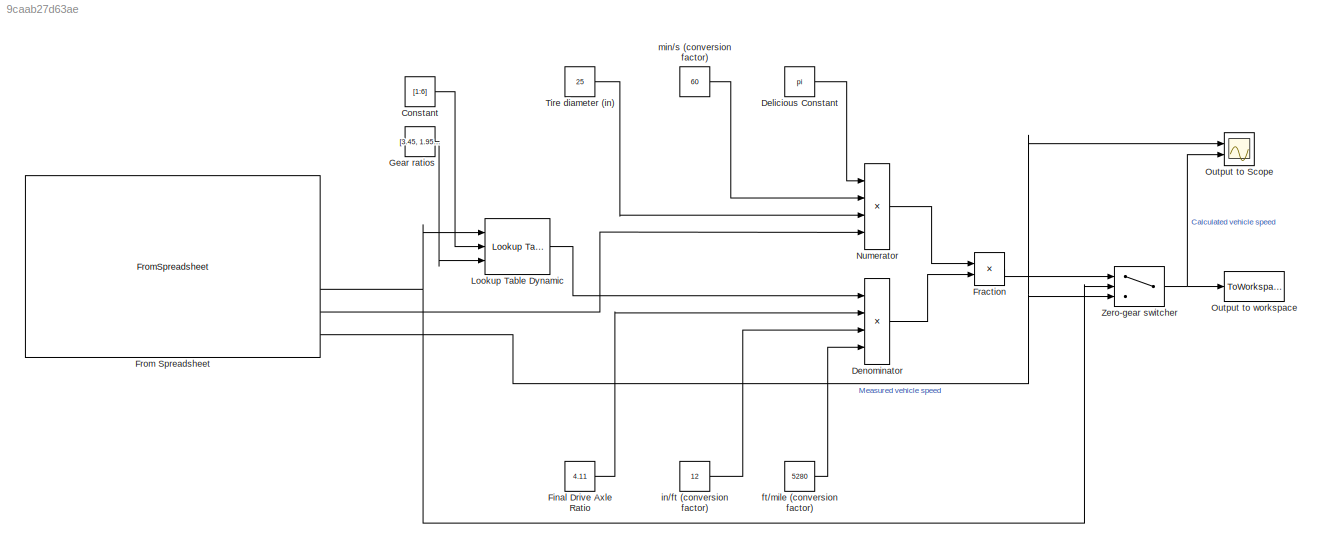
MODEL slx_9caab27d63ae
KIND model
CONFIG AbsTol = auto
CONFIG EnableMultiTasking = off
CONFIG FixedStep = 1
CONFIG MaxStep = auto
CONFIG MinStep = auto
CONFIG RelTol = 1e-3
CONFIG SampleTimeConstraint = Unconstrained
CONFIG Solver = FixedStepAuto
CONFIG SolverName = FixedStepAuto
CONFIG StartTime = 0.0
CONFIG StopTime = count
BLOCK [Constant] Constant
  Value = [1:6]
BLOCK [Constant] Delicious Constant
  Value = pi
BLOCK [Product] Denominator
  InputSameDT = off
  Inputs = 4
  OutDataTypeStr = Inherit: Inherit via internal rule
  Ports = [4, 1]
  RndMeth = Floor
  SaturateOnIntegerOverflow = off
BLOCK [Constant] Final Drive Axle Ratio
  Value = 4.11
BLOCK [Product] Fraction
  InputSameDT = off
  Inputs = */
  OutDataTypeStr = Inherit: Inherit via internal rule
  Ports = [2, 1]
  RndMeth = Floor
  SaturateOnIntegerOverflow = off
BLOCK [FromSpreadsheet] From Spreadsheet
  FileName = datalog1.xlsx
  Ports = [0, 7]
  SheetName = datalog1
BLOCK [Constant] Gear ratios
  Value = [3.45, 1.95, 1.30, 0.97, 0.78, 0.67]
BLOCK [Reference] Lookup Table Dynamic  REF=simulink/Lookup
Tables/Lookup
Table
Dynamic
  Ports = [3, 1]
  SourceBlock = simulink/Lookup\nTables/Lookup\nTable\nDynamic
  SourceProductBaseCode = SL
  SourceProductName = Simulink
  SourceType = Lookup Table Dynamic
BLOCK [Product] Numerator
  InputSameDT = off
  Inputs = 4
  OutDataTypeStr = Inherit: Inherit via internal rule
  Ports = [4, 1]
  RndMeth = Floor
  SaturateOnIntegerOverflow = off
BLOCK [Scope] Output to Scope
  Floating = off
  NumInputPorts = 2
  Ports = [2]
  ScopeSpecificationString = Simulink.scopes.TimeScopeBlockCfg('CurrentConfiguration', extmgr.ConfigurationSet(extmgr.Configuration('Core','General UI',true),extmgr.Configuration('Core','Source UI',true),extmgr.Configuration('Sources','WiredSimulink',true),extmgr.Configuration('Visuals','Time Domain',true,'SerializedDisplays',{struct('MinYLimReal','-11.32744','MaxYLimReal','101.94696','YLabelReal','','MinYLimMag','0.00000','M...<+2161ch>
BLOCK [ToWorkspace] Output to workspace
  FixptAsFi = on
  MaxDataPoints = inf
  Ports = [1]
  SampleTime = -1
  Save2DSignal = 2-D array (concatenate along first dimension)
  VariableName = speed_calc
BLOCK [Constant] Tire diameter (in)
  Value = 25
BLOCK [Switch] Zero-gear switcher
  Criteria = u2 > Threshold
  InputSameDT = off
  SaturateOnIntegerOverflow = off
BLOCK [Constant] ft//mile (conversion factor)
  Value = 5280
BLOCK [Constant] in//ft (conversion factor)
  Value = 12
BLOCK [Constant] min//s (conversion factor)
  Value = 60
LINE Constant:1 -> Lookup Table Dynamic:2
LINE Delicious Constant:1 -> Numerator:1
LINE Denominator:1 -> Fraction:2
LINE Final Drive Axle Ratio:1 -> Denominator:2
LINE Fraction:1 -> Zero-gear switcher:1
NET From Spreadsheet:5 -> Lookup Table Dynamic:1, Zero-gear switcher:2
LINE From Spreadsheet:6 -> Numerator:4
NET From Spreadsheet:7 -> Output to Scope:1, Zero-gear switcher:3
LINE Gear ratios:1 -> Lookup Table Dynamic:3
LINE Lookup Table Dynamic:1 -> Denominator:1
LINE Numerator:1 -> Fraction:1
LINE Tire diameter (in):1 -> Numerator:3
NET Zero-gear switcher:1 -> Output to Scope:2, Output to workspace:1
LINE ft//mile (conversion factor):1 -> Denominator:4
LINE in//ft (conversion factor):1 -> Denominator:3
LINE min//s (conversion factor):1 -> Numerator:2
note: NET lines group one-source signal fan-out (src -> all destinations, sorted); 1:1 wires keep LINE
